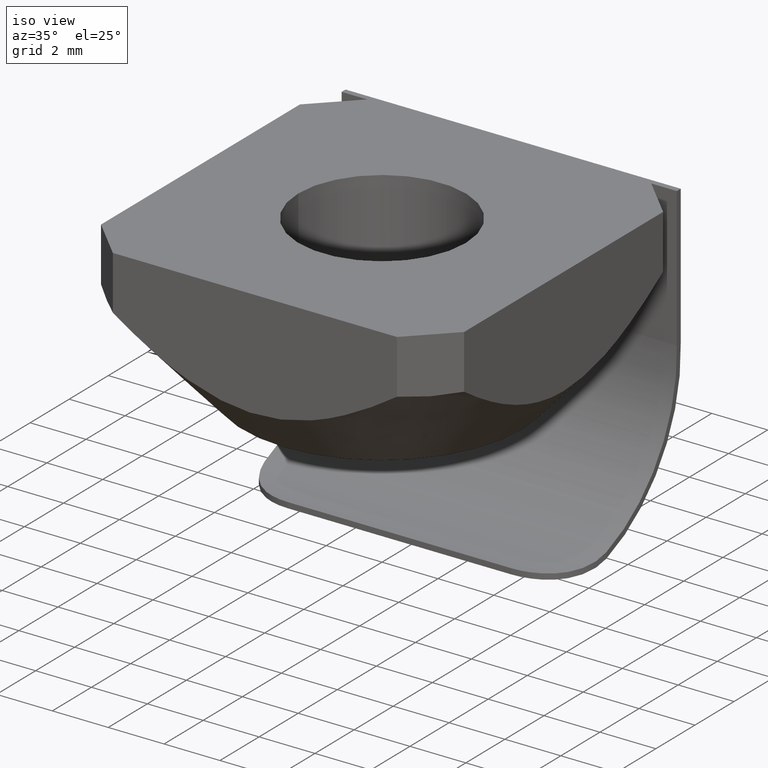
[diagram: clean part render]
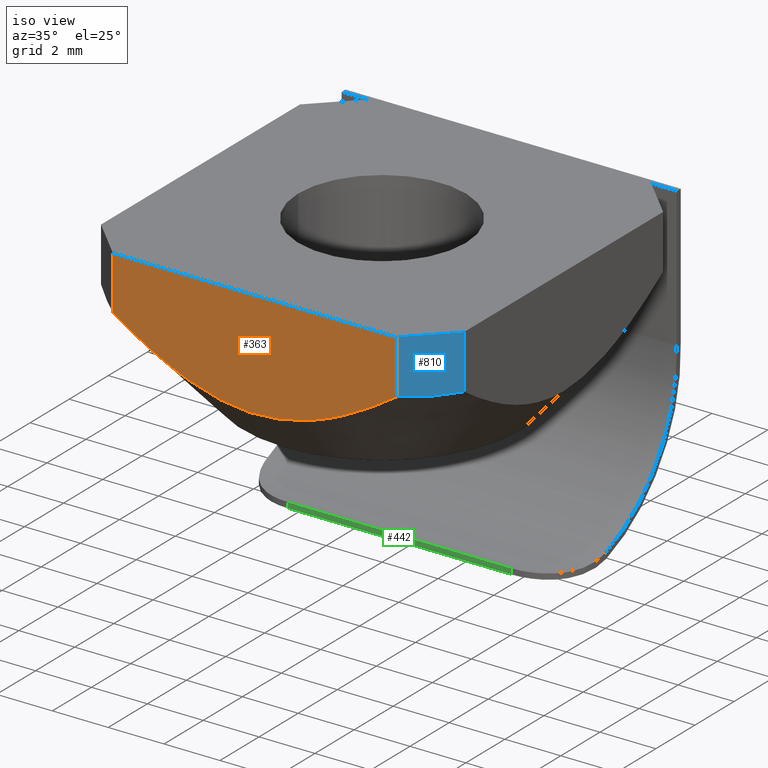
[diagram: same view with three faces highlighted in distinct colors, each labeled with its STEP entity id]
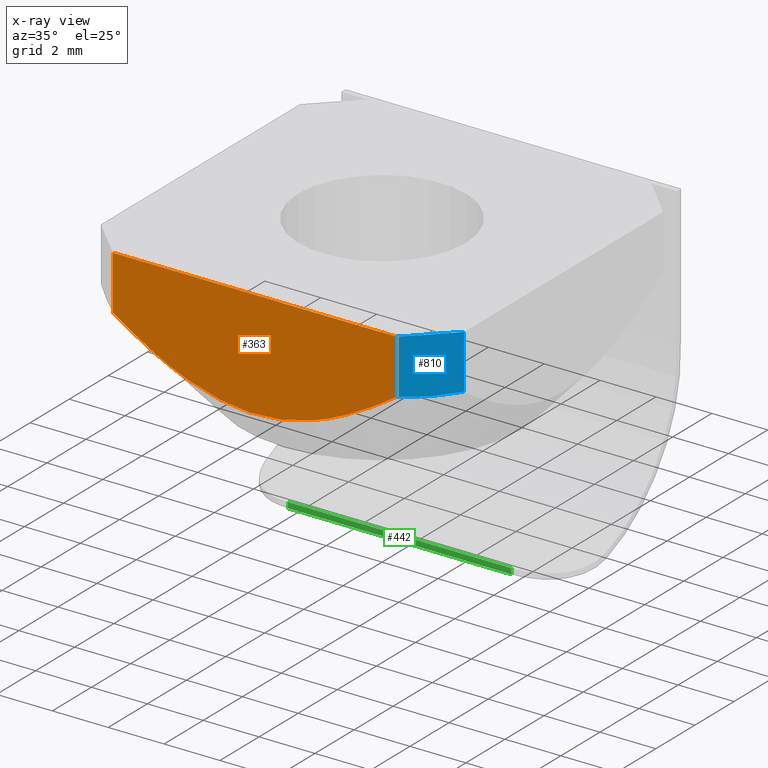
[diagram: x-ray of the same camera — body ghosted, the three highlighted faces saturated]
A machine part, iso view with three faces highlighted in distinct colors.
The next image is the same camera in x-ray (body ghosted, the three faces saturated) — at least one of them is partly hidden behind the body in this view.
Their STEP definitions:

[orange] entity #363 — the highlighted planar face has unit normal (0, -1, 0).
#27 = LINE ( 'NONE', #561, #599 ) ;
#28 = CARTESIAN_POINT ( 'NONE',  ( 3.107124692420668577, -6.500000000000003553, -3.094845548749633579 ) ) ;
#39 = CARTESIAN_POINT ( 'NONE',  ( 2.258238322193993675, -6.500000000000004441, -3.449905772485376332 ) ) ;
#54 = ORIENTED_EDGE ( 'NONE', *, *, #680, .T. ) ;
#103 = CARTESIAN_POINT ( 'NONE',  ( -5.085786437677105809, -6.500000000012473578, -1.933334202242374511 ) ) ;
#123 = DIRECTION ( 'NONE',  ( 0.0000000000000000000, -0.0000000000000000000, -1.000000000000000000 ) ) ;
#151 = DIRECTION ( 'NONE',  ( 0.0000000000000000000, -0.0000000000000000000, -1.000000000000000000 ) ) ;
#161 = VERTEX_POINT ( 'NONE', #428 ) ;
#180 = CARTESIAN_POINT ( 'NONE',  ( 0.4653350873336495885, -6.500000000000003553, -3.855445476124735649 ) ) ;
#220 = CARTESIAN_POINT ( 'NONE',  ( 5.085786437626905965, -6.500000000000003553, 0.0000000000000000000 ) ) ;
#229 = EDGE_CURVE ( 'NONE', #782, #161, #624, .T. ) ;
#231 = VECTOR ( 'NONE', #373, 1000.000000000000000 ) ;
#323 = ORIENTED_EDGE ( 'NONE', *, *, #864, .T. ) ;
#333 = CARTESIAN_POINT ( 'NONE',  ( 5.085786437626906853, -6.500000000000002665, 0.0000000000000000000 ) ) ;
#363 = ADVANCED_FACE ( 'NONE', ( #540 ), #445, .T. ) ;
#373 = DIRECTION ( 'NONE',  ( 0.0000000000000000000, -0.0000000000000000000, -1.000000000000000000 ) ) ;
#375 = CARTESIAN_POINT ( 'NONE',  ( -5.085786437626905077, -6.500000000000002665, 0.0000000000000000000 ) ) ;
#378 = VECTOR ( 'NONE', #921, 1000.000000000000000 ) ;
#383 = CARTESIAN_POINT ( 'NONE',  ( -1.815581894366166571, -6.500000000000001776, -3.598278178908113745 ) ) ;
#391 = CARTESIAN_POINT ( 'NONE',  ( -4.314559355035862076, -6.500000000000002665, -2.436630007698925571 ) ) ;
#428 = CARTESIAN_POINT ( 'NONE',  ( 5.085786437677106697, -6.500000000012474466, -1.933334202242371402 ) ) ;
#445 = PLANE ( 'NONE',  #547 ) ;
#454 = VERTEX_POINT ( 'NONE', #375 ) ;
#482 = CARTESIAN_POINT ( 'NONE',  ( -0.9205997802961275456, -6.500000000000003553, -3.800373221879205232 ) ) ;
#485 = ORIENTED_EDGE ( 'NONE', *, *, #807, .F. ) ;
#529 = LINE ( 'NONE', #700, #378 ) ;
#540 = FACE_OUTER_BOUND ( 'NONE', #691, .T. ) ;
#546 = CARTESIAN_POINT ( 'NONE',  ( 1.815743295979880711, -6.500000000000003553, -3.598228176136369694 ) ) ;
#547 = AXIS2_PLACEMENT_3D ( 'NONE', #947, #594, #151 ) ;
#552 = CARTESIAN_POINT ( 'NONE',  ( 0.9208216822838624083, -6.500000000000002665, -3.800336665431245819 ) ) ;
#561 = CARTESIAN_POINT ( 'NONE',  ( -5.085786437626905965, -6.500000000000002665, 0.0000000000000000000 ) ) ;
#594 = DIRECTION ( 'NONE',  ( 0.0000000000000000000, -1.000000000000000000, 0.0000000000000000000 ) ) ;
#599 = VECTOR ( 'NONE', #123, 1000.000000000000000 ) ;
#614 = CARTESIAN_POINT ( 'NONE',  ( 4.703623369059488191, -6.500000000000002665, -2.191522821825990341 ) ) ;
#618 = CARTESIAN_POINT ( 'NONE',  ( -5.085786437677105809, -6.500000000012473578, -1.933334202242374511 ) ) ;
#624 = LINE ( 'NONE', #220, #231 ) ;
#640 = B_SPLINE_CURVE_WITH_KNOTS ( 'NONE', 3,
 ( #103, #892, #391, #684, #757, #669, #383, #482, #897, #180, #552, #546, #39, #28, #749, #758, #614, #753 ),
 .UNSPECIFIED., .F., .F.,
 ( 4, 2, 2, 2, 2, 2, 2, 2, 4 ),
 ( 8.321574170978936394E-14, 0.001375126083683639398, 0.002750252167284061508, 0.004125378250884484052, 0.005500504334484906596, 0.006875630418085329140, 0.008250756501685751684, 0.009625882585286174228, 0.01100100866888659851 ),
 .UNSPECIFIED. ) ;
#669 = CARTESIAN_POINT ( 'NONE',  ( -2.258066242822474035, -6.500000000000002665, -3.449969955218917583 ) ) ;
#680 = EDGE_CURVE ( 'NONE', #742, #161, #640, .T. ) ;
#684 = CARTESIAN_POINT ( 'NONE',  ( -3.516232638360159868, -6.500000000000004441, -2.888248432145468669 ) ) ;
#691 = EDGE_LOOP ( 'NONE', ( #485, #323, #54, #808 ) ) ;
#700 = CARTESIAN_POINT ( 'NONE',  ( 8.326673000000000714E-16, -6.500000000000002665, 0.0000000000000000000 ) ) ;
#742 = VERTEX_POINT ( 'NONE', #618 ) ;
#749 = CARTESIAN_POINT ( 'NONE',  ( 3.516309706215214437, -6.500000000000002665, -2.888207160138610785 ) ) ;
#753 = CARTESIAN_POINT ( 'NONE',  ( 5.085786437677106697, -6.500000000012474466, -1.933334202242371402 ) ) ;
#757 = CARTESIAN_POINT ( 'NONE',  ( -3.107021229645464011, -6.500000000000003553, -3.094896613372096539 ) ) ;
#758 = CARTESIAN_POINT ( 'NONE',  ( 4.314592221427061780, -6.500000000000002665, -2.436609088893720632 ) ) ;
#782 = VERTEX_POINT ( 'NONE', #333 ) ;
#807 = EDGE_CURVE ( 'NONE', #454, #782, #529, .T. ) ;
#808 = ORIENTED_EDGE ( 'NONE', *, *, #229, .F. ) ;
#864 = EDGE_CURVE ( 'NONE', #454, #742, #27, .T. ) ;
#892 = CARTESIAN_POINT ( 'NONE',  ( -4.703608218064449176, -6.499999999966565412, -2.191533057788421779 ) ) ;
#897 = CARTESIAN_POINT ( 'NONE',  ( -0.4648848418447529274, -6.500000000000003553, -3.855480798021071465 ) ) ;
#921 = DIRECTION ( 'NONE',  ( 1.000000000000000000, 0.0000000000000000000, -0.0000000000000000000 ) ) ;
#947 = CARTESIAN_POINT ( 'NONE',  ( -5.085786437626905965, -6.500000000000002665, 0.0000000000000000000 ) ) ;

[blue] entity #810 — the highlighted planar face has unit normal (0.7071, -0.7071, 0).
#106 = VERTEX_POINT ( 'NONE', #862 ) ;
#132 = PLANE ( 'NONE',  #206 ) ;
#161 = VERTEX_POINT ( 'NONE', #428 ) ;
#177 = ORIENTED_EDGE ( 'NONE', *, *, #229, .T. ) ;
#206 = AXIS2_PLACEMENT_3D ( 'NONE', #568, #423, #927 ) ;
#220 = CARTESIAN_POINT ( 'NONE',  ( 5.085786437626905965, -6.500000000000003553, 0.0000000000000000000 ) ) ;
#229 = EDGE_CURVE ( 'NONE', #782, #161, #624, .T. ) ;
#231 = VECTOR ( 'NONE', #373, 1000.000000000000000 ) ;
#236 = EDGE_CURVE ( 'NONE', #782, #106, #689, .T. ) ;
#270 = B_SPLINE_CURVE_WITH_KNOTS ( 'NONE', 3,
 ( #309, #737, #374, #317 ),
 .UNSPECIFIED., .F., .F.,
 ( 4, 4 ),
 ( 6.051050471646755322E-14, 0.002000000000007151873 ),
 .UNSPECIFIED. ) ;
#277 = DIRECTION ( 'NONE',  ( 0.0000000000000000000, 0.0000000000000000000, -1.000000000000000000 ) ) ;
#309 = CARTESIAN_POINT ( 'NONE',  ( 5.085786437677106697, -6.500000000012474466, -1.933334202242371402 ) ) ;
#317 = CARTESIAN_POINT ( 'NONE',  ( 6.500000000012471801, -5.085786437677110250, -1.933334202242371402 ) ) ;
#333 = CARTESIAN_POINT ( 'NONE',  ( 5.085786437626906853, -6.500000000000002665, 0.0000000000000000000 ) ) ;
#354 = VECTOR ( 'NONE', #364, 1000.000000000000000 ) ;
#364 = DIRECTION ( 'NONE',  ( 0.7071067811865473507, 0.7071067811865477948, 0.0000000000000000000 ) ) ;
#373 = DIRECTION ( 'NONE',  ( 0.0000000000000000000, -0.0000000000000000000, -1.000000000000000000 ) ) ;
#374 = CARTESIAN_POINT ( 'NONE',  ( 6.028595479244057032, -5.557190958382852486, -2.021894486498649446 ) ) ;
#388 = ORIENTED_EDGE ( 'NONE', *, *, #840, .F. ) ;
#422 = VECTOR ( 'NONE', #277, 1000.000000000000000 ) ;
#423 = DIRECTION ( 'NONE',  ( 0.7071067811865475727, -0.7071067811865475727, 0.0000000000000000000 ) ) ;
#428 = CARTESIAN_POINT ( 'NONE',  ( 5.085786437677106697, -6.500000000012474466, -1.933334202242371402 ) ) ;
#488 = EDGE_LOOP ( 'NONE', ( #598, #177, #648, #388 ) ) ;
#556 = EDGE_CURVE ( 'NONE', #161, #765, #270, .T. ) ;
#568 = CARTESIAN_POINT ( 'NONE',  ( 5.085786437626905965, -6.500000000000003553, 0.0000000000000000000 ) ) ;
#598 = ORIENTED_EDGE ( 'NONE', *, *, #236, .F. ) ;
#624 = LINE ( 'NONE', #220, #231 ) ;
#633 = CARTESIAN_POINT ( 'NONE',  ( 6.500000000000000888, -5.085786437626907741, 0.0000000000000000000 ) ) ;
#648 = ORIENTED_EDGE ( 'NONE', *, *, #556, .T. ) ;
#672 = FACE_OUTER_BOUND ( 'NONE', #488, .T. ) ;
#689 = LINE ( 'NONE', #869, #354 ) ;
#697 = CARTESIAN_POINT ( 'NONE',  ( 6.500000000012471801, -5.085786437677110250, -1.933334202242371402 ) ) ;
#733 = LINE ( 'NONE', #633, #422 ) ;
#737 = CARTESIAN_POINT ( 'NONE',  ( 5.557190958361344357, -6.028595479226081189, -2.021894486487701315 ) ) ;
#765 = VERTEX_POINT ( 'NONE', #697 ) ;
#782 = VERTEX_POINT ( 'NONE', #333 ) ;
#810 = ADVANCED_FACE ( 'NONE', ( #672 ), #132, .T. ) ;
#840 = EDGE_CURVE ( 'NONE', #106, #765, #733, .T. ) ;
#862 = CARTESIAN_POINT ( 'NONE',  ( 6.500000000000000888, -5.085786437626907741, 0.0000000000000000000 ) ) ;
#869 = CARTESIAN_POINT ( 'NONE',  ( 5.085786437626905965, -6.500000000000003553, 0.0000000000000000000 ) ) ;
#927 = DIRECTION ( 'NONE',  ( 0.7071067811865474617, 0.7071067811865474617, 0.0000000000000000000 ) ) ;

[green] entity #442 — the highlighted planar face has unit normal (0, -1, 0).
#3 = AXIS2_PLACEMENT_3D ( 'NONE', #665, #604, #879 ) ;
#15 = EDGE_CURVE ( 'NONE', #32, #609, #606, .T. ) ;
#29 = VECTOR ( 'NONE', #296, 1000.000000000000000 ) ;
#32 = VERTEX_POINT ( 'NONE', #118 ) ;
#38 = CARTESIAN_POINT ( 'NONE',  ( 0.0000000000000000000, 0.8999999999984790167, -10.60000000000000142 ) ) ;
#41 = EDGE_LOOP ( 'NONE', ( #779, #756, #704, #235 ) ) ;
#88 = PLANE ( 'NONE',  #3 ) ;
#116 = VERTEX_POINT ( 'NONE', #279 ) ;
#118 = CARTESIAN_POINT ( 'NONE',  ( 4.000000000000000888, 0.8999999999984801269, -10.60000000000000142 ) ) ;
#172 = DIRECTION ( 'NONE',  ( -0.0000000000000000000, 0.0000000000000000000, 1.000000000000000000 ) ) ;
#181 = DIRECTION ( 'NONE',  ( -1.000000000000000000, -0.0000000000000000000, -0.0000000000000000000 ) ) ;
#222 = LINE ( 'NONE', #513, #29 ) ;
#235 = ORIENTED_EDGE ( 'NONE', *, *, #15, .T. ) ;
#241 = CARTESIAN_POINT ( 'NONE',  ( -4.000000000000000888, 0.8999999999984800159, -10.60000000000000142 ) ) ;
#279 = CARTESIAN_POINT ( 'NONE',  ( 4.000000000000000888, 0.8999999999984784615, -10.80000000000000426 ) ) ;
#296 = DIRECTION ( 'NONE',  ( -0.0000000000000000000, -0.0000000000000000000, 1.000000000000000000 ) ) ;
#327 = CARTESIAN_POINT ( 'NONE',  ( 4.000000000000000888, 0.8999999999984800159, -10.80000000000000071 ) ) ;
#329 = CARTESIAN_POINT ( 'NONE',  ( 0.0000000000000000000, 0.8999999999984770183, -10.80000000000000426 ) ) ;
#437 = VERTEX_POINT ( 'NONE', #885 ) ;
#442 = ADVANCED_FACE ( 'NONE', ( #938 ), #88, .T. ) ;
#467 = DIRECTION ( 'NONE',  ( -1.000000000000000000, -0.0000000000000000000, -0.0000000000000000000 ) ) ;
#502 = VECTOR ( 'NONE', #172, 1000.000000000000000 ) ;
#513 = CARTESIAN_POINT ( 'NONE',  ( -4.000000000000000888, 0.8999999999984810151, -8.605752313873237469 ) ) ;
#593 = EDGE_CURVE ( 'NONE', #116, #437, #660, .T. ) ;
#604 = DIRECTION ( 'NONE',  ( 0.0000000000000000000, -1.000000000000000000, 0.0000000000000000000 ) ) ;
#606 = LINE ( 'NONE', #38, #941 ) ;
#609 = VERTEX_POINT ( 'NONE', #241 ) ;
#644 = EDGE_CURVE ( 'NONE', #116, #32, #775, .T. ) ;
#660 = LINE ( 'NONE', #329, #711 ) ;
#665 = CARTESIAN_POINT ( 'NONE',  ( 0.0000000000000000000, 0.8999999999984800159, -10.80000000000000071 ) ) ;
#704 = ORIENTED_EDGE ( 'NONE', *, *, #644, .T. ) ;
#711 = VECTOR ( 'NONE', #467, 1000.000000000000000 ) ;
#756 = ORIENTED_EDGE ( 'NONE', *, *, #593, .F. ) ;
#775 = LINE ( 'NONE', #327, #502 ) ;
#779 = ORIENTED_EDGE ( 'NONE', *, *, #934, .F. ) ;
#879 = DIRECTION ( 'NONE',  ( 0.0000000000000000000, -0.0000000000000000000, -1.000000000000000000 ) ) ;
#885 = CARTESIAN_POINT ( 'NONE',  ( -4.000000000000000888, 0.8999999999984800159, -10.80000000000000426 ) ) ;
#934 = EDGE_CURVE ( 'NONE', #437, #609, #222, .T. ) ;
#938 = FACE_OUTER_BOUND ( 'NONE', #41, .T. ) ;
#941 = VECTOR ( 'NONE', #181, 1000.000000000000000 ) ;